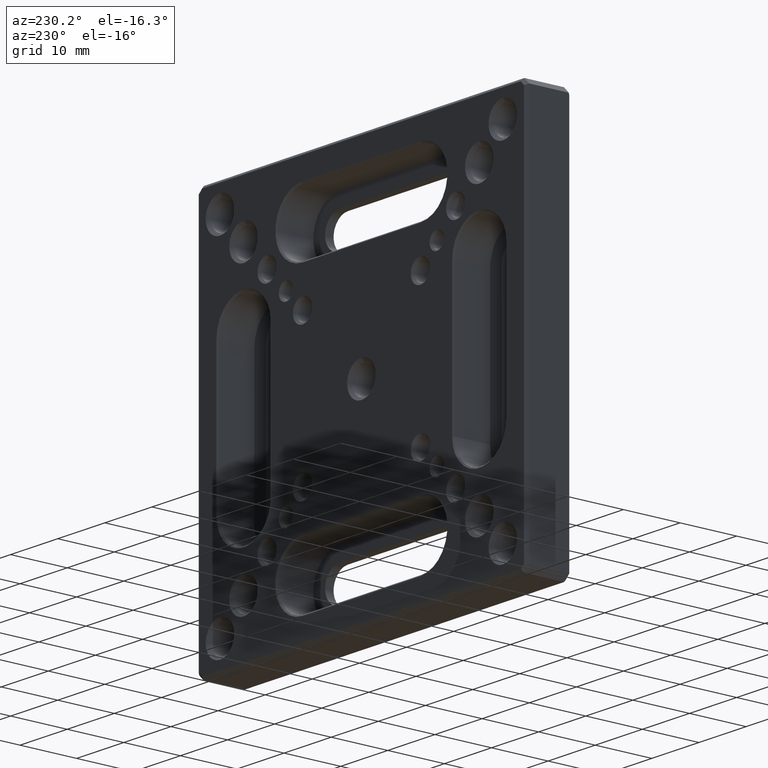
[diagram: clean part render]
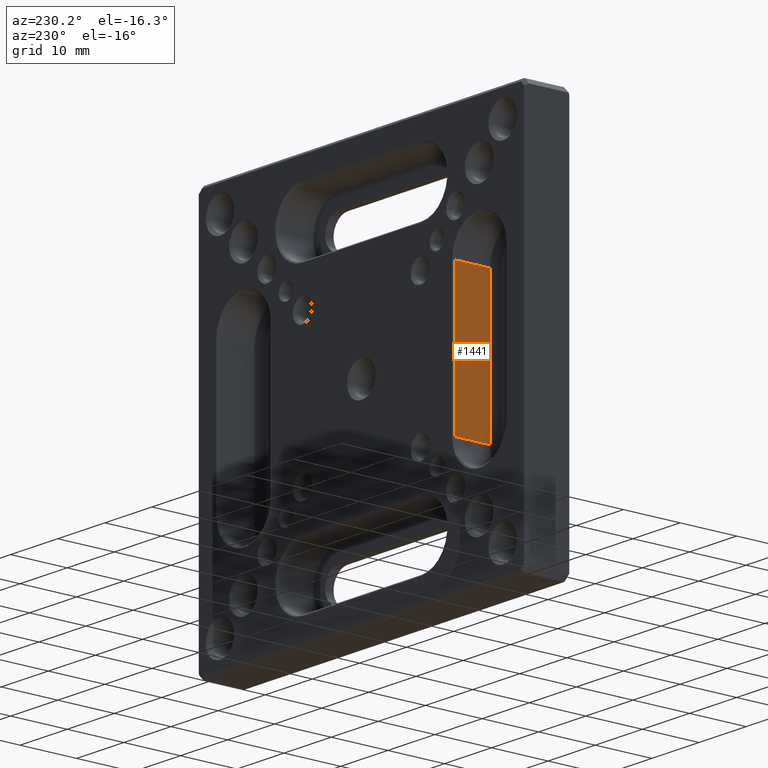
[diagram: same view with one face highlighted and labeled with its STEP entity id]
A machine part, auxiliary view. The second image highlights one B-rep face of the part: STEP entity #1441.
In plain terms, the highlighted planar face has unit normal (1, 0, -0).
Its self-contained STEP definition (entity closure, byte-faithful):
#46 = EDGE_CURVE ( 'NONE', #213, #2498, #2135, .T. ) ;
#213 = VERTEX_POINT ( 'NONE', #655 ) ;
#230 = FACE_OUTER_BOUND ( 'NONE', #1984, .T. ) ;
#257 = CARTESIAN_POINT ( 'NONE',  ( -19.50000000000001066, 7.749999999999964473, -12.50000000000000355 ) ) ;
#468 = LINE ( 'NONE', #257, #1094 ) ;
#655 = CARTESIAN_POINT ( 'NONE',  ( -19.50000000000001066, 1.500000000000000444, -12.50000000000000355 ) ) ;
#709 = EDGE_CURVE ( 'NONE', #783, #2498, #468, .T. ) ;
#721 = DIRECTION ( 'NONE',  ( 0.000000000000000000, 0.000000000000000000, -1.000000000000000000 ) ) ;
#765 = CARTESIAN_POINT ( 'NONE',  ( -19.50000000000001066, 1.500000000000000444, -12.50000000000000355 ) ) ;
#783 = VERTEX_POINT ( 'NONE', #2867 ) ;
#818 = DIRECTION ( 'NONE',  ( -0.000000000000000000, 0.000000000000000000, -1.000000000000000000 ) ) ;
#864 = LINE ( 'NONE', #2163, #2393 ) ;
#964 = EDGE_CURVE ( 'NONE', #1945, #213, #1654, .T. ) ;
#965 = VECTOR ( 'NONE', #1892, 1000.000000000000000 ) ;
#1044 = DIRECTION ( 'NONE',  ( -0.000000000000000000, -0.000000000000000000, -1.000000000000000000 ) ) ;
#1094 = VECTOR ( 'NONE', #721, 1000.000000000000000 ) ;
#1441 = ADVANCED_FACE ( 'NONE', ( #230 ), #1827, .F. ) ;
#1589 = VECTOR ( 'NONE', #1044, 1000.000000000000000 ) ;
#1597 = ORIENTED_EDGE ( 'NONE', *, *, #964, .F. ) ;
#1654 = LINE ( 'NONE', #2711, #1589 ) ;
#1721 = ORIENTED_EDGE ( 'NONE', *, *, #46, .F. ) ;
#1827 = PLANE ( 'NONE',  #2954 ) ;
#1892 = DIRECTION ( 'NONE',  ( -0.000000000000000000, 1.000000000000000000, -0.000000000000000000 ) ) ;
#1923 = DIRECTION ( 'NONE',  ( -0.000000000000000000, 1.000000000000000000, -0.000000000000000000 ) ) ;
#1945 = VERTEX_POINT ( 'NONE', #2992 ) ;
#1984 = EDGE_LOOP ( 'NONE', ( #3015, #2367, #1721, #1597 ) ) ;
#2134 = EDGE_CURVE ( 'NONE', #1945, #783, #864, .T. ) ;
#2135 = LINE ( 'NONE', #3211, #965 ) ;
#2163 = CARTESIAN_POINT ( 'NONE',  ( -19.50000000000001066, 1.500000000000000444, 12.49999999999999645 ) ) ;
#2367 = ORIENTED_EDGE ( 'NONE', *, *, #709, .T. ) ;
#2393 = VECTOR ( 'NONE', #1923, 1000.000000000000000 ) ;
#2498 = VERTEX_POINT ( 'NONE', #3270 ) ;
#2711 = CARTESIAN_POINT ( 'NONE',  ( -19.50000000000001066, 1.500000000000000444, -12.50000000000000355 ) ) ;
#2867 = CARTESIAN_POINT ( 'NONE',  ( -19.50000000000001066, 7.749999999999962697, 12.49999999999999645 ) ) ;
#2954 = AXIS2_PLACEMENT_3D ( 'NONE', #765, #3181, #818 ) ;
#2992 = CARTESIAN_POINT ( 'NONE',  ( -19.50000000000001066, 1.500000000000000444, 12.49999999999999645 ) ) ;
#3015 = ORIENTED_EDGE ( 'NONE', *, *, #2134, .T. ) ;
#3181 = DIRECTION ( 'NONE',  ( 1.000000000000000000, 0.000000000000000000, -0.000000000000000000 ) ) ;
#3211 = CARTESIAN_POINT ( 'NONE',  ( -19.50000000000001066, 1.500000000000000444, -12.50000000000000355 ) ) ;
#3270 = CARTESIAN_POINT ( 'NONE',  ( -19.50000000000001066, 7.749999999999962697, -12.50000000000000355 ) ) ;